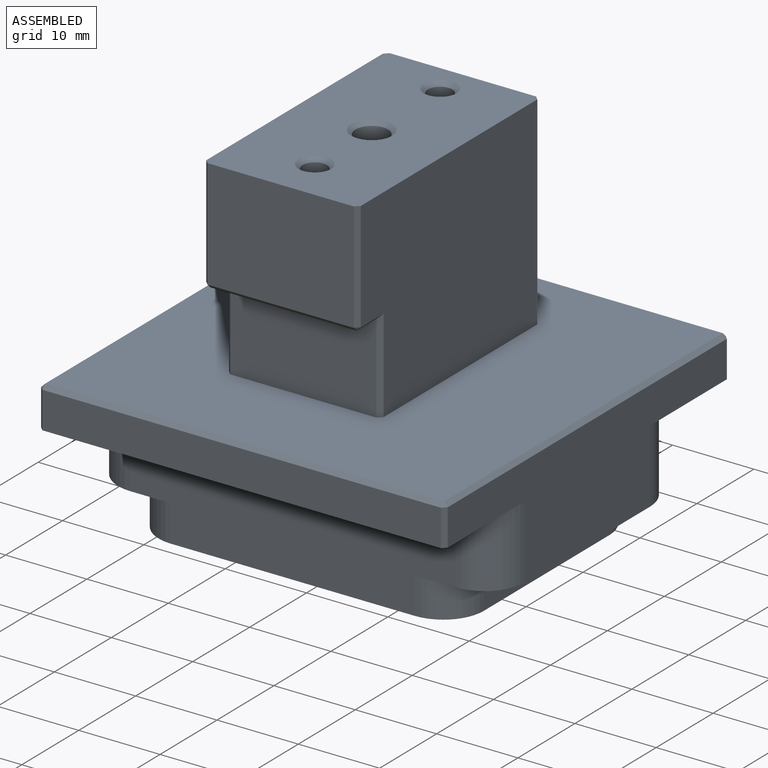
[diagram: assembled view]
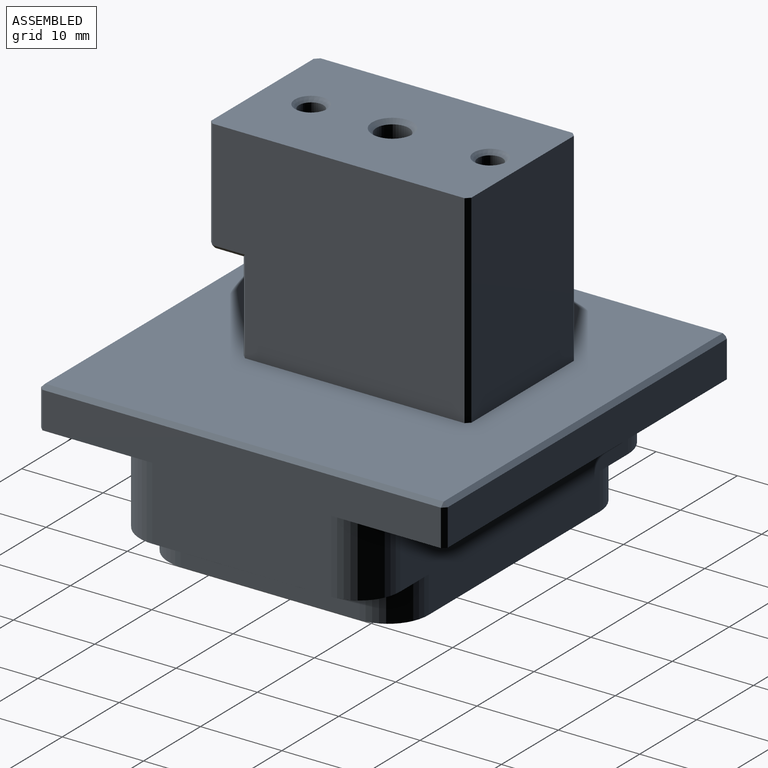
[diagram: assembled view, second angle]
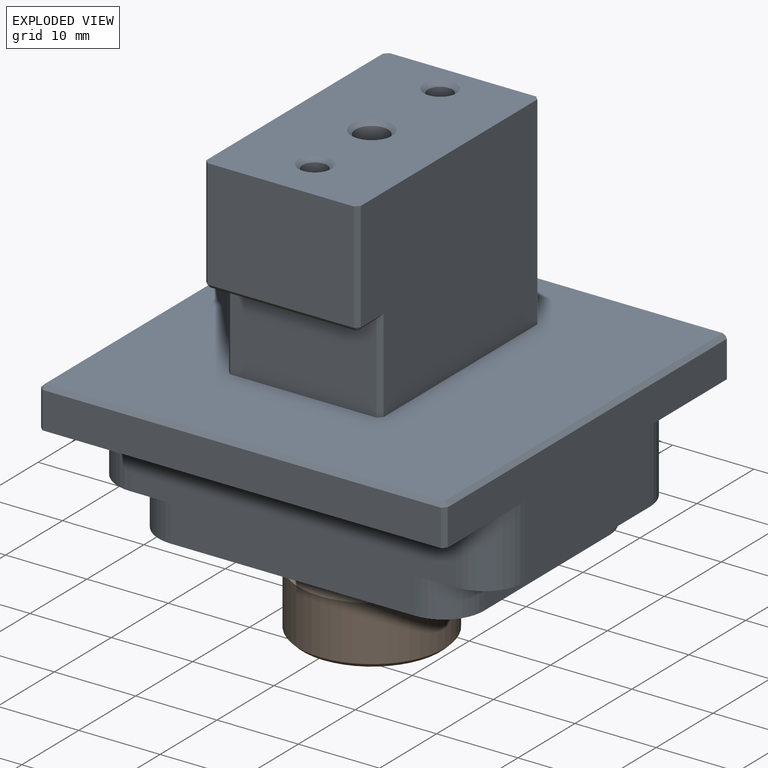
[diagram: exploded view]
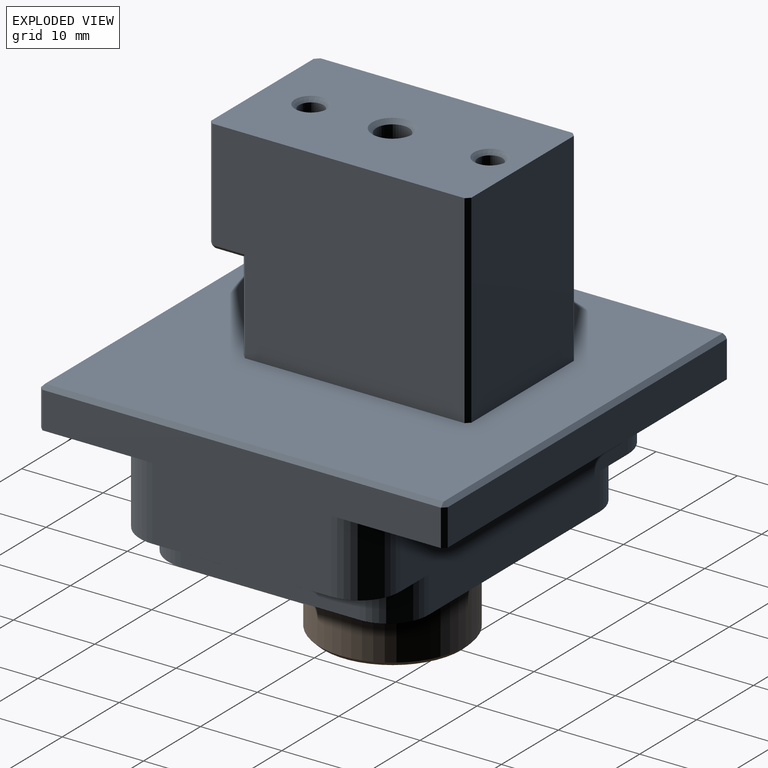
[diagram: exploded view, second angle]
ASSEMBLY  parts=2 mates=2
PART A: 72 faces, bbox 50x50x45 mm
  f0: cylinder r=2mm len=36mm, axis (0,0,1), area 452.4mm2, adj f44,f48
  f1: plane 31x25mm, normal (-1,0,0), area 729mm2, adj f11,f12,f53,f55,f57,f59
  f2: plane 31x25mm, normal (1,0,0), area 729mm2, adj f11,f12,f49,f50,f51,f58
  f3: plane 18x13.5mm, normal (0,-1,0), area 243mm2, adj f12,f50,f54,f57
  f4: plane 33.57x25.57mm, normal (0,0,-1), area 571.9mm2, adj f30,f31,f32,f33,f34,f35,f36,f37
  f5: plane 40x13.5mm, normal (0,1,0), area 495mm2, adj f13,f17,f19,f20,f21,f25,f26,f37
  f6: plane 49x13.5mm, normal (-1,0,0), area 418.5mm2, adj f13,f15,f17,f20,f23,f61,f67,f68
  f7: plane 49x4.5mm, normal (0,-1,0), area 220.5mm2, adj f15,f66,f67,f71
  f8: plane 49x13.5mm, normal (1,0,0), area 418.5mm2, adj f13,f15,f19,f21,f22,f60,f65,f66
  f9: plane 49x4.5mm, normal (0,1,0), area 220.5mm2, adj f13,f60,f61,f62
  f10: plane 25x18mm, normal (0,1,0), area 450mm2, adj f11,f12,f58,f59
  f11: plane 49x49mm, normal (0,0,1), area 1869.5mm2, adj f1,f2,f10,f29,f49,f53,f58,f59
  f12: plane 32x19mm, normal (0,0,1), area 562.7mm2, adj f1,f2,f3,f10,f46,f47,f48,f50
  f13: plane 50x14mm, normal (0,0,-1), area 460.5mm2, adj f5,f6,f8,f9,f20,f21,f60,f61
  f14: plane 40x13.5mm, normal (0,-1,0), area 495mm2, adj f15,f17,f19,f22,f23,f24,f27,f30
  f15: plane 50x14mm, normal (0,0,-1), area 460.5mm2, adj f6,f7,f8,f14,f22,f23,f66,f67
  f16: plane 22x4.5mm, normal (-1,0,0), area 99mm2, adj f17,f24,f25,f33
  f17: plane 32x10mm, normal (0,0,-1), area 160mm2, adj f5,f6,f14,f16,f20,f23,f24,f25
  f18: plane 22x4.5mm, normal (1,0,0), area 99mm2, adj f19,f26,f27,f34
  f19: plane 32x10mm, normal (0,0,-1), area 160mm2, adj f5,f8,f14,f18,f21,f22,f26,f27
  f20: cylinder r=5mm len=9mm, axis (0,0,-1), area 70.7mm2, adj f5,f6,f13,f17
  f21: cylinder r=5mm len=9mm, axis (0,0,1), area 70.7mm2, adj f5,f8,f13,f19
  f22: cylinder r=5mm len=9mm, axis (0,0,-1), area 70.7mm2, adj f8,f14,f15,f19
  f23: cylinder r=5mm len=9mm, axis (0,0,1), area 70.7mm2, adj f6,f14,f15,f17
  f24: cylinder r=5mm len=5mm, axis (0,0,1), area 35.3mm2, adj f14,f16,f17,f31
  f25: cylinder r=5mm len=5mm, axis (0,0,-1), area 35.3mm2, adj f5,f16,f17,f35
  f26: cylinder r=5mm len=5mm, axis (0,0,1), area 35.3mm2, adj f5,f18,f19,f36
  f27: cylinder r=5mm len=5mm, axis (0,0,-1), area 35.3mm2, adj f14,f18,f19,f32
  f28: plane 18x3.5mm, normal (0,0,-1), area 63mm2, adj f29,f51,f54,f55
  f29: plane 18x11mm, normal (0,-1,0), area 198mm2, adj f11,f28,f49,f53
  f30: plane 30x3.22mm, normal (0,-0.42,-0.91), area 106.5mm2, adj f4,f14,f31,f32
  f31: cone r=1.78mm half-angle=65deg, axis (0,0,1), area 18.9mm2, adj f4,f24,f30,f33
  f32: cone r=1.78mm half-angle=65deg, axis (0,0,1), area 18.9mm2, adj f4,f27,f30,f34
  f33: plane 22x3.22mm, normal (-0.42,0,-0.91), area 78.1mm2, adj f4,f16,f31,f35
  f34: plane 22x3.22mm, normal (0.42,0,-0.91), area 78.1mm2, adj f4,f18,f32,f36
  f35: cone r=1.78mm half-angle=65deg, axis (0,0,1), area 18.9mm2, adj f4,f25,f33,f37
  f36: cone r=1.78mm half-angle=65deg, axis (0,0,1), area 18.9mm2, adj f4,f26,f34,f37
  f37: plane 30x3.22mm, normal (0,0.42,-0.91), area 106.5mm2, adj f4,f5,f35,f36
  f38: cylinder r=1.5mm len=5.5mm, axis (0,0,1), area 51.8mm2, adj f39,f47
  f39: plane 3x3mm, normal (0,0,1), area 7.1mm2, adj f38
  f40: cylinder r=1.5mm len=5.5mm, axis (0,0,1), area 51.8mm2, adj f41,f46
  f41: plane 3x3mm, normal (0,0,1), area 7.1mm2, adj f40
  f42: plane 18x18mm, normal (0,0,-1), area 234.8mm2, adj f43,f44
  f43: cylinder r=9mm len=18mm, axis (0,0,-1), area 424.1mm2, adj f42,f45
  f44: cone r=2.5mm half-angle=45deg, axis (0,0,-1), area 10mm2, adj f0,f42
  f45: cone r=9mm half-angle=45deg, axis (0,0,-1), area 41.1mm2, adj f4,f43
  f46: cone r=1.5mm half-angle=45deg, axis (0,0,1), area 7.8mm2, adj f12,f40
  f47: cone r=1.5mm half-angle=45deg, axis (0,0,1), area 7.8mm2, adj f12,f38
  f48: cone r=2mm half-angle=45deg, axis (0,0,1), area 10mm2, adj f0,f12
  f49: plane 11.5x0.5mm, normal (0.71,-0.71,0), area 8mm2, adj f2,f11,f29,f51
  f50: plane 13.5x0.5mm, normal (0.71,-0.71,0), area 9.5mm2, adj f2,f3,f12,f52
  f51: plane 4x0.5mm, normal (0.71,0,-0.71), area 2.7mm2, adj f2,f28,f49,f52
  f52: plane 0.5x0.5mm, normal (0.58,-0.58,-0.58), area 0.2mm2, adj f50,f51,f54
  f53: plane 11.5x0.5mm, normal (-0.71,-0.71,0), area 8mm2, adj f1,f11,f29,f55
  f54: plane 18x0.5mm, normal (0,-0.71,-0.71), area 12.7mm2, adj f3,f28,f52,f56
  f55: plane 4x0.5mm, normal (-0.71,0,-0.71), area 2.7mm2, adj f1,f28,f53,f56
  f56: plane 0.5x0.5mm, normal (-0.58,-0.58,-0.58), area 0.2mm2, adj f54,f55,f57
  f57: plane 13.5x0.5mm, normal (-0.71,-0.71,0), area 9.5mm2, adj f1,f3,f12,f56
  f58: plane 25x0.5mm, normal (0.71,0.71,0), area 17.7mm2, adj f2,f10,f11,f12
  f59: plane 25x0.5mm, normal (-0.71,0.71,0), area 17.7mm2, adj f1,f10,f11,f12
  f60: plane 4.5x0.5mm, normal (0.71,0.71,0), area 3.2mm2, adj f8,f9,f13,f63
  f61: plane 4.5x0.5mm, normal (-0.71,0.71,0), area 3.2mm2, adj f6,f9,f13,f64
  f62: plane 49x0.5mm, normal (0,0.71,0.71), area 34.6mm2, adj f9,f11,f63,f64
  f63: plane 0.5x0.5mm, normal (0.58,0.58,0.58), area 0.2mm2, adj f60,f62,f65
  f64: plane 0.5x0.5mm, normal (-0.58,0.58,0.58), area 0.2mm2, adj f61,f62,f68
  f65: plane 49x0.5mm, normal (0.71,0,0.71), area 34.6mm2, adj f8,f11,f63,f69
  f66: plane 4.5x0.5mm, normal (0.71,-0.71,0), area 3.2mm2, adj f7,f8,f15,f69
  f67: plane 4.5x0.5mm, normal (-0.71,-0.71,0), area 3.2mm2, adj f6,f7,f15,f70
  f68: plane 49x0.5mm, normal (-0.71,0,0.71), area 34.6mm2, adj f6,f11,f64,f70
  f69: plane 0.5x0.5mm, normal (0.58,-0.58,0.58), area 0.2mm2, adj f65,f66,f71
  f70: plane 0.5x0.5mm, normal (-0.58,-0.58,0.58), area 0.2mm2, adj f67,f68,f71
  f71: plane 49x0.5mm, normal (0,-0.71,0.71), area 34.6mm2, adj f7,f11,f69,f70
PART B: 11 faces, bbox 18x7.8x18 mm
  f0: cylinder r=2mm len=4mm, axis (0,-1,0), area 10.1mm2, adj f6,f7
  f1: cylinder r=9mm len=18mm, axis (0,-1,0), area 384.5mm2, adj f8,f10
  f2: plane 17x17mm, normal (0,1,0), area 163.4mm2, adj f9,f10
  f3: plane 17x17mm, normal (0,-1,0), area 207.3mm2, adj f6,f8
  f4: plane 8x8mm, normal (0,1,0), area 30.6mm2, adj f5,f7
  f5: cylinder r=4mm len=8mm, axis (0,1,0), area 138.2mm2, adj f4,f9
  f6: cone r=2mm half-angle=45deg, axis (0,-1,0), area 10mm2, adj f0,f3
  f7: cone r=2.5mm half-angle=45deg, axis (0,1,0), area 10mm2, adj f0,f4
  f8: cone r=8.5mm half-angle=45deg, axis (0,1,0), area 38.9mm2, adj f1,f3
  f9: cone r=4mm half-angle=45deg, axis (0,1,0), area 18.9mm2, adj f2,f5
  f10: cone r=9mm half-angle=45deg, axis (0,-1,0), area 38.9mm2, adj f1,f2
PLACE A t=(-11.35,-10.88,225.3)mm
PLACE B rot(axis=(-1,0,0),90deg) t=(-37.85,14.12,233.3)mm
MATE slider B.f1 <-> A.f0  axis (0,0,1) through (-37.85,14.12,229.4)mm
MATE planar B.f1 <-> A.f0  axis (0,0,1) through (-37.85,14.12,233.3)mm
